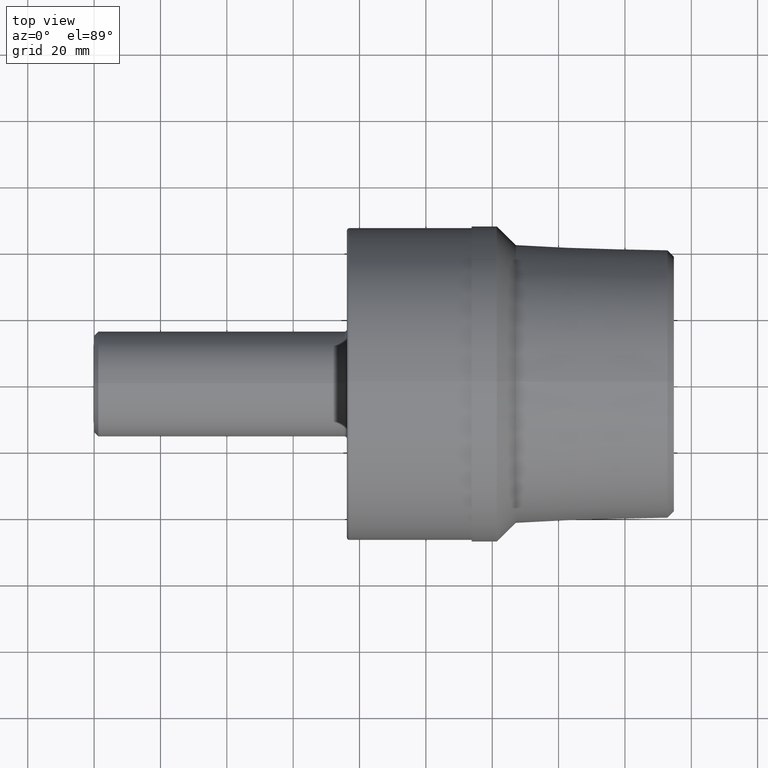
[diagram: clean part render]
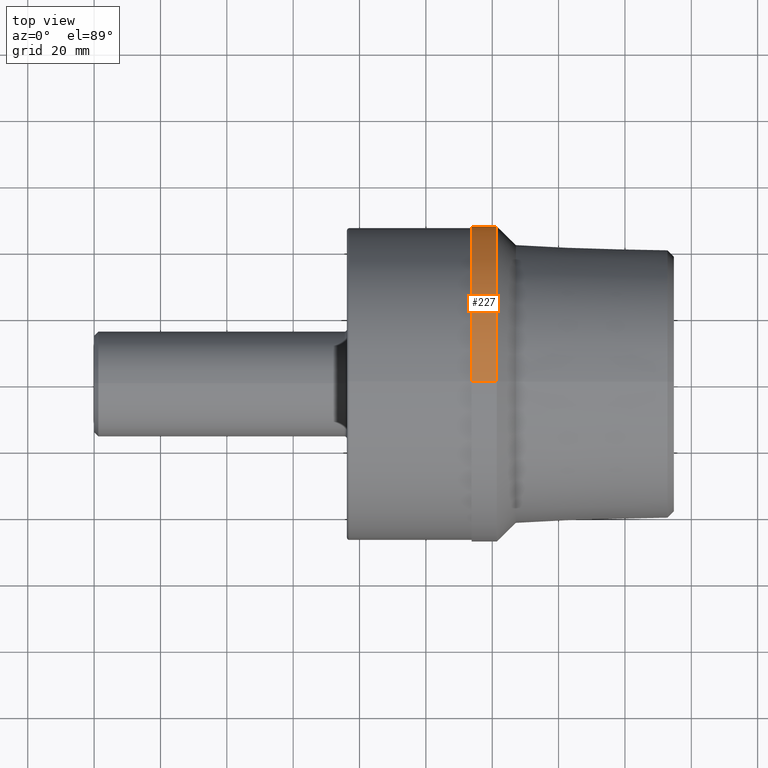
[diagram: same view with one face highlighted and labeled with its STEP entity id]
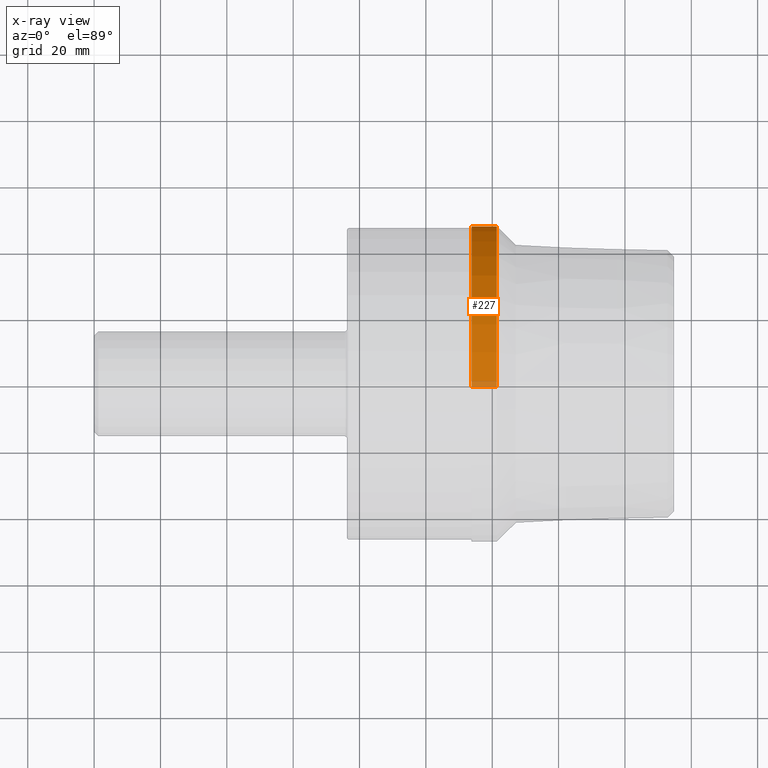
[diagram: x-ray of the same camera — body ghosted, the highlighted face saturated]
A machine part, top view. The second image highlights one B-rep face of the part: STEP entity #227.
The next image is the same camera in x-ray: the body ghosted, the highlighted face saturated — about 3% of this face is hidden behind the body in this view.
In plain terms, the highlighted cylindrical surface (partial cylindrical patch) has radius 47.625 mm, axis along (-1, -0, -0).
Its self-contained STEP definition (entity closure, byte-faithful):
#9 = LINE ( 'NONE', #271, #125 ) ;
#19 = EDGE_CURVE ( 'NONE', #107, #487, #553, .T. ) ;
#45 = CARTESIAN_POINT ( 'NONE',  ( 4.778000000000000469, 0.0000000000000000000, 1.875000000000000000 ) ) ;
#47 = VERTEX_POINT ( 'NONE', #604 ) ;
#51 = DIRECTION ( 'NONE',  ( -1.000000000000000000, -0.0000000000000000000, -0.0000000000000000000 ) ) ;
#56 = ORIENTED_EDGE ( 'NONE', *, *, #19, .T. ) ;
#58 = EDGE_CURVE ( 'NONE', #487, #104, #417, .T. ) ;
#86 = CARTESIAN_POINT ( 'NONE',  ( 4.778000000000000469, 0.0000000000000000000, 0.0000000000000000000 ) ) ;
#104 = VERTEX_POINT ( 'NONE', #319 ) ;
#107 = VERTEX_POINT ( 'NONE', #45 ) ;
#124 = ORIENTED_EDGE ( 'NONE', *, *, #58, .T. ) ;
#125 = VECTOR ( 'NONE', #370, 39.37007874015748143 ) ;
#160 = AXIS2_PLACEMENT_3D ( 'NONE', #86, #394, #542 ) ;
#165 = ORIENTED_EDGE ( 'NONE', *, *, #473, .F. ) ;
#166 = DIRECTION ( 'NONE',  ( -1.000000000000000000, -0.0000000000000000000, -0.0000000000000000000 ) ) ;
#168 = DIRECTION ( 'NONE',  ( 0.0000000000000000000, 0.0000000000000000000, 1.000000000000000000 ) ) ;
#178 = CARTESIAN_POINT ( 'NONE',  ( 0.0000000000000000000, 0.0000000000000000000, 0.0000000000000000000 ) ) ;
#180 = EDGE_CURVE ( 'NONE', #107, #47, #9, .T. ) ;
#227 = ADVANCED_FACE ( 'NONE', ( #242 ), #520, .T. ) ;
#242 = FACE_OUTER_BOUND ( 'NONE', #470, .T. ) ;
#269 = ORIENTED_EDGE ( 'NONE', *, *, #180, .F. ) ;
#271 = CARTESIAN_POINT ( 'NONE',  ( 0.0000000000000000000, 0.0000000000000000000, 1.875000000000000000 ) ) ;
#289 = AXIS2_PLACEMENT_3D ( 'NONE', #178, #166, #168 ) ;
#319 = CARTESIAN_POINT ( 'NONE',  ( 4.479999999999999538, 2.296212748401287479E-16, -1.875000000000000000 ) ) ;
#354 = CIRCLE ( 'NONE', #403, 1.875000000000000000 ) ;
#367 = VECTOR ( 'NONE', #51, 39.37007874015748143 ) ;
#370 = DIRECTION ( 'NONE',  ( -1.000000000000000000, -0.0000000000000000000, -0.0000000000000000000 ) ) ;
#394 = DIRECTION ( 'NONE',  ( -1.000000000000000000, -0.0000000000000000000, -0.0000000000000000000 ) ) ;
#403 = AXIS2_PLACEMENT_3D ( 'NONE', #440, #486, #496 ) ;
#417 = LINE ( 'NONE', #464, #367 ) ;
#440 = CARTESIAN_POINT ( 'NONE',  ( 4.479999999999999538, 0.0000000000000000000, 0.0000000000000000000 ) ) ;
#464 = CARTESIAN_POINT ( 'NONE',  ( 0.0000000000000000000, 2.296212748401287479E-16, -1.875000000000000000 ) ) ;
#470 = EDGE_LOOP ( 'NONE', ( #56, #124, #165, #269 ) ) ;
#473 = EDGE_CURVE ( 'NONE', #47, #104, #354, .T. ) ;
#475 = CARTESIAN_POINT ( 'NONE',  ( 4.778000000000000469, 2.296212748401287479E-16, -1.875000000000000000 ) ) ;
#486 = DIRECTION ( 'NONE',  ( -1.000000000000000000, -0.0000000000000000000, -0.0000000000000000000 ) ) ;
#487 = VERTEX_POINT ( 'NONE', #475 ) ;
#496 = DIRECTION ( 'NONE',  ( 0.0000000000000000000, 0.0000000000000000000, 1.000000000000000000 ) ) ;
#520 = CYLINDRICAL_SURFACE ( 'NONE', #289, 1.875000000000000000 ) ;
#542 = DIRECTION ( 'NONE',  ( 0.0000000000000000000, 0.0000000000000000000, 1.000000000000000000 ) ) ;
#553 = CIRCLE ( 'NONE', #160, 1.875000000000000000 ) ;
#604 = CARTESIAN_POINT ( 'NONE',  ( 4.479999999999999538, 0.0000000000000000000, 1.875000000000000000 ) ) ;